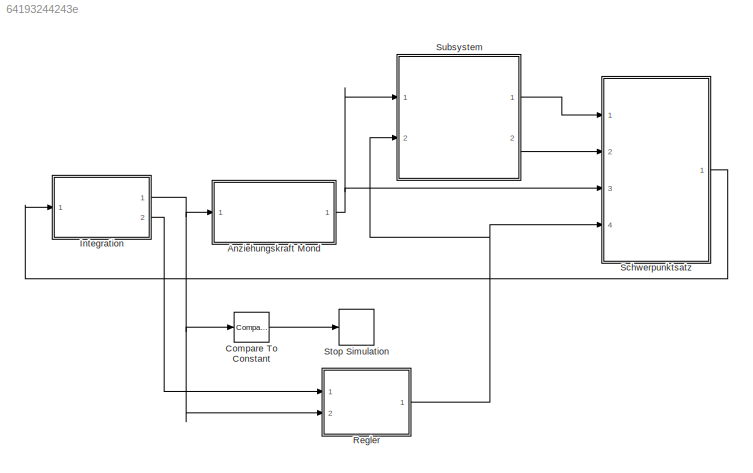
MODEL slx_64193244243e
KIND model
CONFIG AbsTol = auto
CONFIG EnableMultiTasking = off
CONFIG FixedStep = auto
CONFIG MaxStep = 0.01
CONFIG MinStep = auto
CONFIG RelTol = 1e-3
CONFIG SampleTimeConstraint = Unconstrained
CONFIG Solver = VariableStepAuto
CONFIG SolverName = VariableStepAuto
CONFIG StartTime = 0.0
CONFIG StopTime = 300
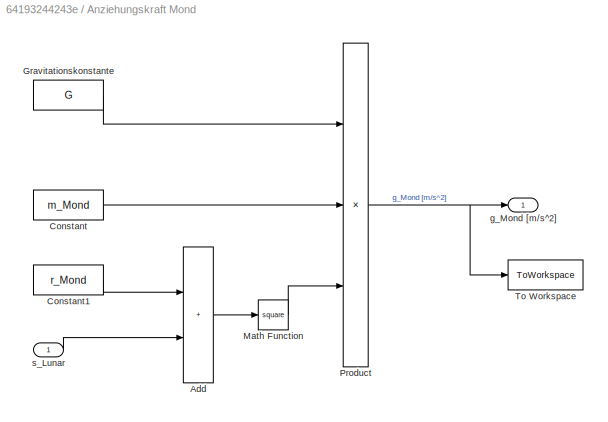
BLOCK [SubSystem] Anziehungskraft Mond
  Ports = [1, 1]
  RequestExecContextInheritance = off
BLOCK [Sum] Anziehungskraft Mond/Add
  IconShape = rectangular
  Ports = [2, 1]
BLOCK [Constant] Anziehungskraft Mond/Constant
  Value = m_Mond
BLOCK [Constant] Anziehungskraft Mond/Constant1
  Value = r_Mond
BLOCK [Constant] Anziehungskraft Mond/Gravitationskonstante
  Value = G
BLOCK [Math] Anziehungskraft Mond/Math Function
  Operator = square
  Ports = [1, 1]
  SignedPower = on
BLOCK [Product] Anziehungskraft Mond/Product
  Inputs = **/
  Ports = [3, 1]
BLOCK [ToWorkspace] Anziehungskraft Mond/To Workspace
  FixptAsFi = on
  MaxDataPoints = inf
  Ports = [1]
  SampleTime = -1
  SaveFormat = Structure With Time
  VariableName = g_Mond
BLOCK [Outport] Anziehungskraft Mond/g_Mond [m//s^2]
  VectorParamsAs1DForOutWhenUnconnected = off
BLOCK [Inport] Anziehungskraft Mond/s_Lunar
BLOCK [Reference] Compare To Constant  REF=simulink/Logic and Bit
Operations/Compare
To Constant
  Ports = [1, 1]
  SourceBlock = simulink/Logic and Bit\nOperations/Compare\nTo Constant
  SourceProductBaseCode = SL
  SourceType = Compare To Constant
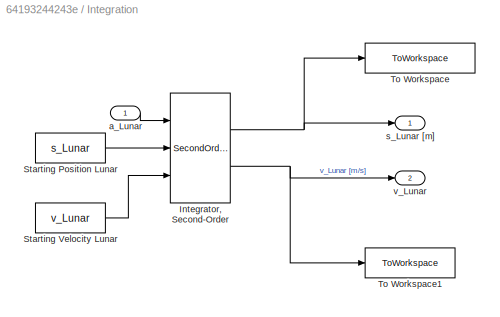
BLOCK [SubSystem] Integration
  Ports = [1, 2]
  RequestExecContextInheritance = off
BLOCK [SecondOrderIntegrator] Integration/Integrator, Second-Order
  ICSourceDXDT = external
  ICSourceX = external
  Ports = [3, 2]
BLOCK [Constant] Integration/Starting Position Lunar
  Value = s_Lunar
BLOCK [Constant] Integration/Starting Velocity Lunar
  Value = v_Lunar
BLOCK [ToWorkspace] Integration/To Workspace
  FixptAsFi = on
  MaxDataPoints = inf
  Ports = [1]
  SampleTime = -1
  SaveFormat = Structure With Time
  VariableName = s_Lunar
BLOCK [ToWorkspace] Integration/To Workspace1
  FixptAsFi = on
  MaxDataPoints = inf
  Ports = [1]
  SampleTime = -1
  SaveFormat = Structure
  VariableName = v_Lunar
BLOCK [Inport] Integration/a_Lunar
BLOCK [Outport] Integration/s_Lunar [m]
  VectorParamsAs1DForOutWhenUnconnected = off
BLOCK [Outport] Integration/v_Lunar 
  Port = 2
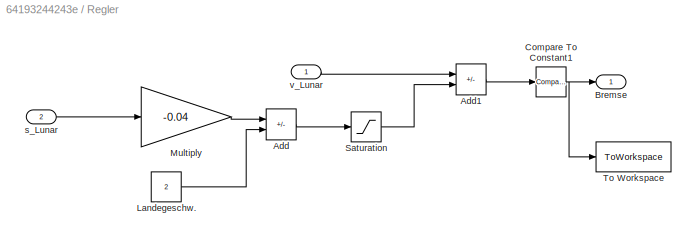
BLOCK [SubSystem] Regler
  Ports = [2, 1]
  RequestExecContextInheritance = off
BLOCK [Sum] Regler/Add
  IconShape = rectangular
  Inputs = +-
  Ports = [2, 1]
BLOCK [Sum] Regler/Add1
  IconShape = rectangular
  Inputs = +-
  Ports = [2, 1]
BLOCK [Outport] Regler/Bremse
BLOCK [Reference] Regler/Compare To Constant1  REF=simulink/Logic and Bit
Operations/Compare
To Constant
  Ports = [1, 1]
  SourceBlock = simulink/Logic and Bit\nOperations/Compare\nTo Constant
  SourceProductBaseCode = SL
  SourceType = Compare To Constant
BLOCK [Constant] Regler/Landegeschw.
  Value = 2
BLOCK [Gain] Regler/Multiply
  Gain = -0.04
BLOCK [Saturate] Regler/Saturation
  LowerLimit = -21
  UpperLimit = 0
BLOCK [ToWorkspace] Regler/To Workspace
  FixptAsFi = on
  MaxDataPoints = inf
  Ports = [1]
  SampleTime = -1
  SaveFormat = Structure With Time
  VariableName = Bremse
BLOCK [Inport] Regler/s_Lunar
  NameLocation = top
  Port = 2
BLOCK [Inport] Regler/v_Lunar
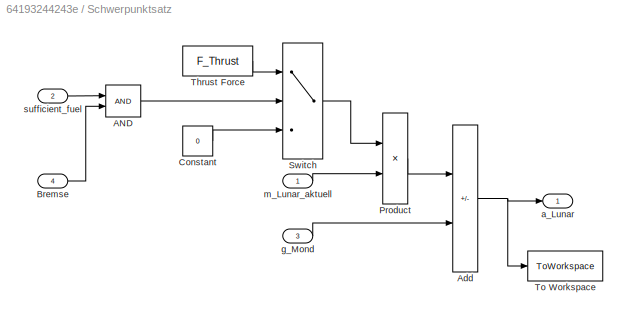
BLOCK [SubSystem] Schwerpunktsatz
  Ports = [4, 1]
  RequestExecContextInheritance = off
BLOCK [Logic] Schwerpunktsatz/AND
  AllPortsSameDT = off
  IconShape = distinctive
  OutDataTypeStr = boolean
  Ports = [2, 1]
BLOCK [Sum] Schwerpunktsatz/Add
  IconShape = rectangular
  Inputs = +-
  Ports = [2, 1]
BLOCK [Inport] Schwerpunktsatz/Bremse
  Port = 4
BLOCK [Constant] Schwerpunktsatz/Constant
  Value = 0
BLOCK [Product] Schwerpunktsatz/Product
  Inputs = */
  Ports = [2, 1]
BLOCK [Switch] Schwerpunktsatz/Switch
  Criteria = u2 > Threshold
  InputSameDT = off
  SaturateOnIntegerOverflow = off
BLOCK [Constant] Schwerpunktsatz/Thrust Force
  Value = F_Thrust
BLOCK [ToWorkspace] Schwerpunktsatz/To Workspace
  FixptAsFi = on
  MaxDataPoints = inf
  Ports = [1]
  SampleTime = -1
  SaveFormat = Structure With Time
  VariableName = a_Lunar
BLOCK [Outport] Schwerpunktsatz/a_Lunar
  VectorParamsAs1DForOutWhenUnconnected = off
BLOCK [Inport] Schwerpunktsatz/g_Mond
  Port = 3
BLOCK [Inport] Schwerpunktsatz/m_Lunar_aktuell
BLOCK [Inport] Schwerpunktsatz/sufficient_fuel
  Port = 2
BLOCK [Stop] Stop Simulation
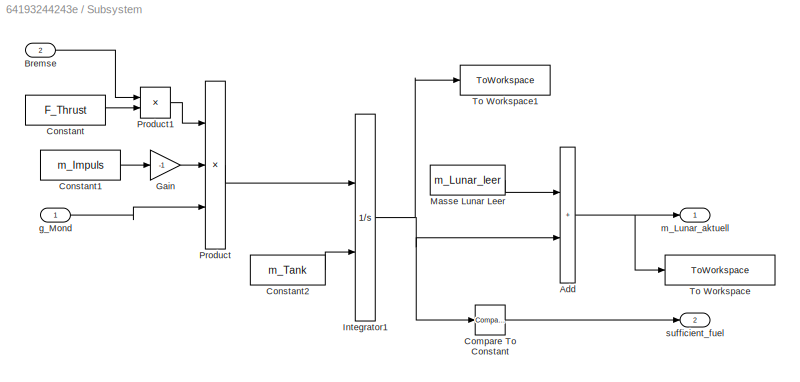
BLOCK [SubSystem] Subsystem
  Ports = [2, 2]
  RequestExecContextInheritance = off
BLOCK [Sum] Subsystem/Add
  IconShape = rectangular
  Ports = [2, 1]
BLOCK [Inport] Subsystem/Bremse
  Port = 2
BLOCK [Reference] Subsystem/Compare To Constant  REF=simulink/Logic and Bit
Operations/Compare
To Constant
  Ports = [1, 1]
  SourceBlock = simulink/Logic and Bit\nOperations/Compare\nTo Constant
  SourceProductBaseCode = SL
  SourceType = Compare To Constant
BLOCK [Constant] Subsystem/Constant
  Value = F_Thrust
BLOCK [Constant] Subsystem/Constant1
  Value = m_Impuls
BLOCK [Constant] Subsystem/Constant2
  Value = m_Tank
BLOCK [Gain] Subsystem/Gain
  Gain = -1
BLOCK [Integrator] Subsystem/Integrator1
  InitialConditionSource = external
  LimitOutput = on
  LowerSaturationLimit = 0
  Ports = [2, 1]
BLOCK [Constant] Subsystem/Masse Lunar Leer
  Value = m_Lunar_leer
BLOCK [Product] Subsystem/Product
  Inputs = *//
  Ports = [3, 1]
BLOCK [Product] Subsystem/Product1
  Ports = [2, 1]
BLOCK [ToWorkspace] Subsystem/To Workspace
  FixptAsFi = on
  MaxDataPoints = inf
  Ports = [1]
  SampleTime = -1
  SaveFormat = Structure With Time
  VariableName = m_Lunar_aktuell
BLOCK [ToWorkspace] Subsystem/To Workspace1
  FixptAsFi = on
  MaxDataPoints = inf
  Ports = [1]
  SampleTime = -1
  SaveFormat = Structure
  VariableName = m_Fuel
BLOCK [Inport] Subsystem/g_Mond
BLOCK [Outport] Subsystem/m_Lunar_aktuell
  VectorParamsAs1DForOutWhenUnconnected = off
BLOCK [Outport] Subsystem/sufficient_fuel
  Port = 2
  VectorParamsAs1DForOutWhenUnconnected = off
LINE Anziehungskraft Mond/Add:1 -> Anziehungskraft Mond/Math Function:1
LINE Anziehungskraft Mond/Constant1:1 -> Anziehungskraft Mond/Add:1
LINE Anziehungskraft Mond/Constant:1 -> Anziehungskraft Mond/Product:2
LINE Anziehungskraft Mond/Gravitationskonstante:1 -> Anziehungskraft Mond/Product:1
LINE Anziehungskraft Mond/Math Function:1 -> Anziehungskraft Mond/Product:3
NET Anziehungskraft Mond/Product:1 -> Anziehungskraft Mond/To Workspace:1, Anziehungskraft Mond/g_Mond [m//s^2]:1
LINE Anziehungskraft Mond/s_Lunar:1 -> Anziehungskraft Mond/Add:2
NET Anziehungskraft Mond:1 -> Schwerpunktsatz:3, Subsystem:1
LINE Compare To Constant:1 -> Stop Simulation:1
NET Integration/Integrator, Second-Order:1 -> Integration/To Workspace:1, Integration/s_Lunar [m]:1
NET Integration/Integrator, Second-Order:2 -> Integration/To Workspace1:1, Integration/v_Lunar :1
LINE Integration/Starting Position Lunar:1 -> Integration/Integrator, Second-Order:2
LINE Integration/Starting Velocity Lunar:1 -> Integration/Integrator, Second-Order:3
LINE Integration/a_Lunar:1 -> Integration/Integrator, Second-Order:1
NET Integration:1 -> Anziehungskraft Mond:1, Compare To Constant:1, Regler:2
LINE Integration:2 -> Regler:1
LINE Regler/Add1:1 -> Regler/Compare To Constant1:1
LINE Regler/Add:1 -> Regler/Saturation:1
NET Regler/Compare To Constant1:1 -> Regler/Bremse:1, Regler/To Workspace:1
LINE Regler/Landegeschw.:1 -> Regler/Add:2
LINE Regler/Multiply:1 -> Regler/Add:1
LINE Regler/Saturation:1 -> Regler/Add1:2
LINE Regler/s_Lunar:1 -> Regler/Multiply:1
LINE Regler/v_Lunar:1 -> Regler/Add1:1
NET Regler:1 -> Schwerpunktsatz:4, Subsystem:2
LINE Schwerpunktsatz/AND:1 -> Schwerpunktsatz/Switch:2
NET Schwerpunktsatz/Add:1 -> Schwerpunktsatz/To Workspace:1, Schwerpunktsatz/a_Lunar:1
LINE Schwerpunktsatz/Bremse:1 -> Schwerpunktsatz/AND:2
LINE Schwerpunktsatz/Constant:1 -> Schwerpunktsatz/Switch:3
LINE Schwerpunktsatz/Product:1 -> Schwerpunktsatz/Add:1
LINE Schwerpunktsatz/Switch:1 -> Schwerpunktsatz/Product:1
LINE Schwerpunktsatz/Thrust Force:1 -> Schwerpunktsatz/Switch:1
LINE Schwerpunktsatz/g_Mond:1 -> Schwerpunktsatz/Add:2
LINE Schwerpunktsatz/m_Lunar_aktuell:1 -> Schwerpunktsatz/Product:2
LINE Schwerpunktsatz/sufficient_fuel:1 -> Schwerpunktsatz/AND:1
LINE Schwerpunktsatz:1 -> Integration:1
NET Subsystem/Add:1 -> Subsystem/To Workspace:1, Subsystem/m_Lunar_aktuell:1
LINE Subsystem/Bremse:1 -> Subsystem/Product1:1
LINE Subsystem/Compare To Constant:1 -> Subsystem/sufficient_fuel:1
LINE Subsystem/Constant1:1 -> Subsystem/Gain:1
LINE Subsystem/Constant2:1 -> Subsystem/Integrator1:2
LINE Subsystem/Constant:1 -> Subsystem/Product1:2
LINE Subsystem/Gain:1 -> Subsystem/Product:2
NET Subsystem/Integrator1:1 -> Subsystem/Add:2, Subsystem/Compare To Constant:1, Subsystem/To Workspace1:1
LINE Subsystem/Masse Lunar Leer:1 -> Subsystem/Add:1
LINE Subsystem/Product1:1 -> Subsystem/Product:1
LINE Subsystem/Product:1 -> Subsystem/Integrator1:1
LINE Subsystem/g_Mond:1 -> Subsystem/Product:3
LINE Subsystem:1 -> Schwerpunktsatz:1
LINE Subsystem:2 -> Schwerpunktsatz:2
note: NET lines group one-source signal fan-out (src -> all destinations, sorted); 1:1 wires keep LINE
